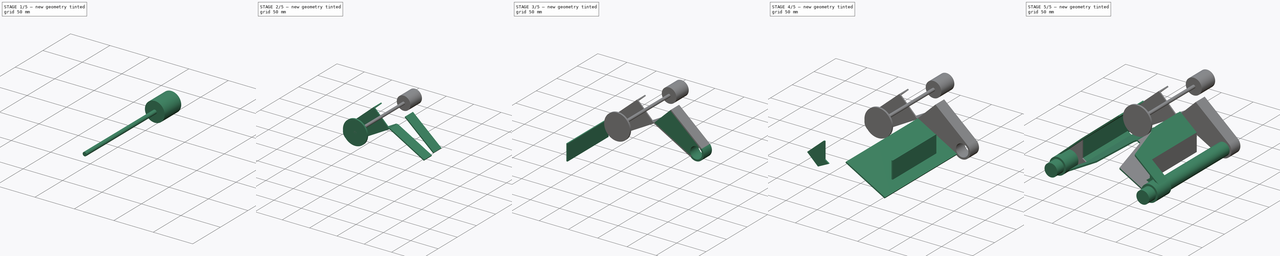
[diagram: build sequence overview — one tinted view per stage of 5, left to right]
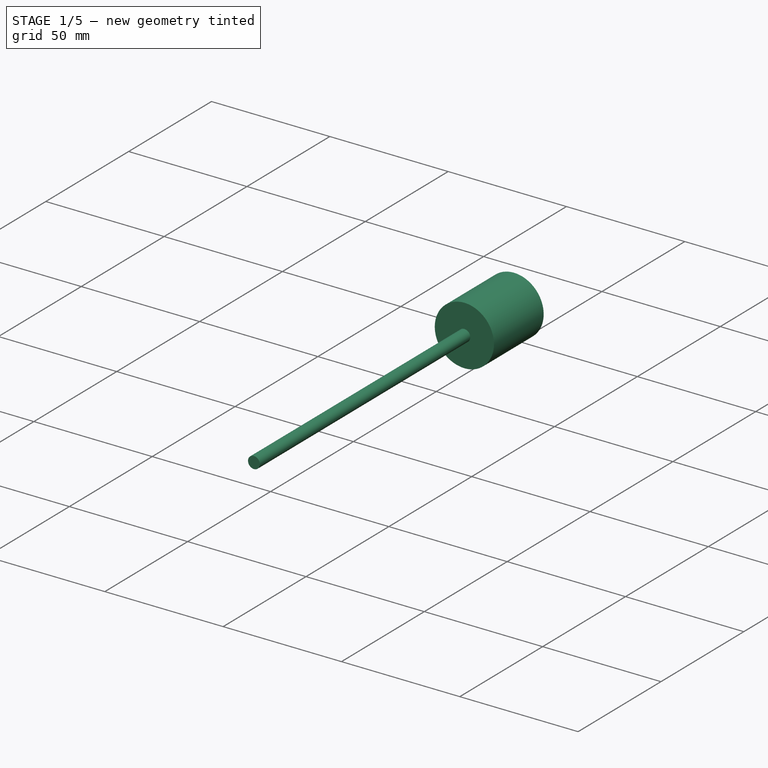
[diagram: stage 1 of 5 — iso view after this stage's code; geometry added in this stage tinted green]
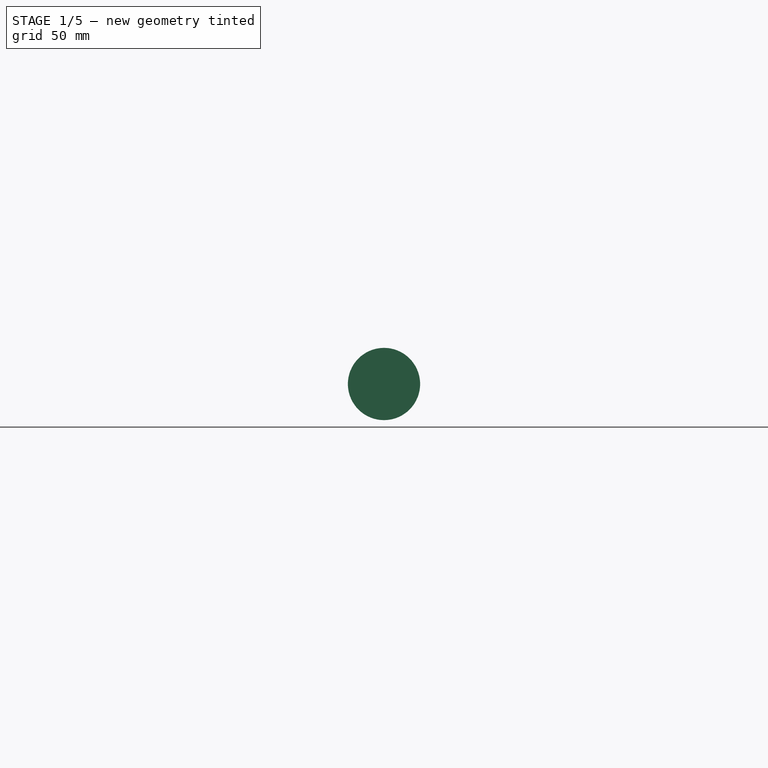
[diagram: stage 1 of 5 — front view after this stage's code; geometry added in this stage tinted green]
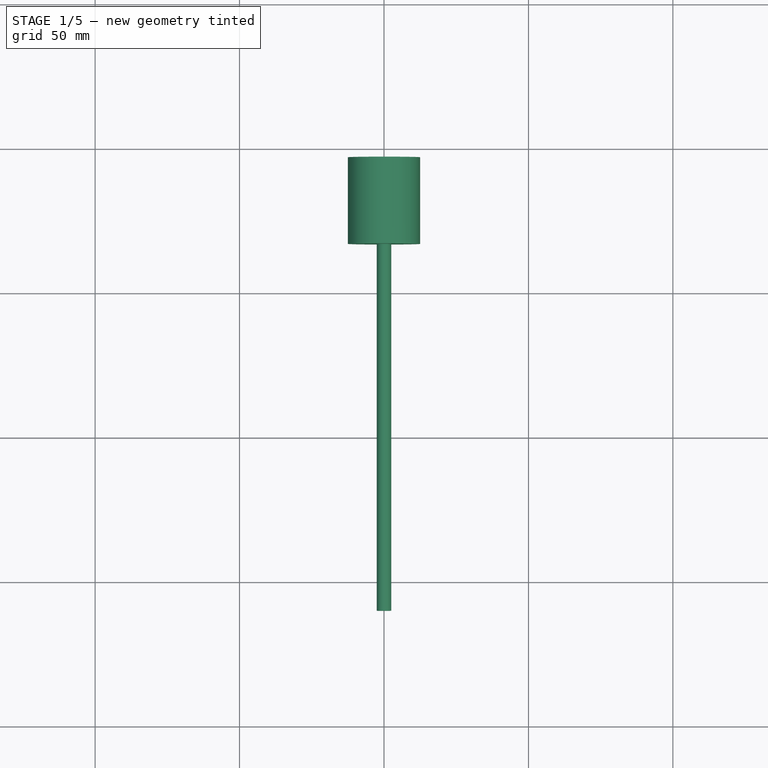
[diagram: stage 1 of 5 — top view after this stage's code; geometry added in this stage tinted green]
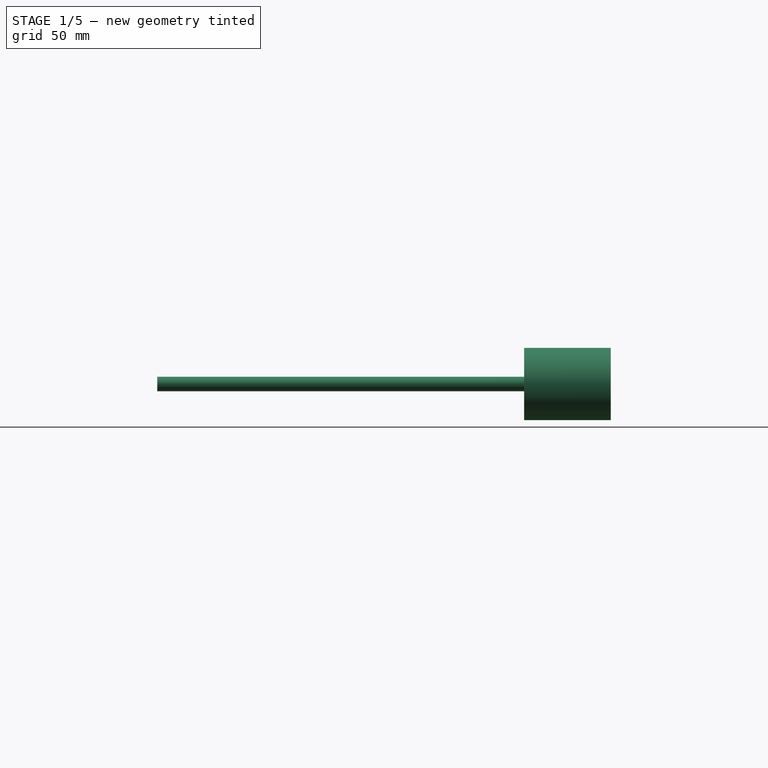
[diagram: stage 1 of 5 — right view after this stage's code; geometry added in this stage tinted green]
FCSTD DOCUMENT  (FreeCAD 0.20R29410 (Git))
Label: motorphite
License: All rights reserved
LicenseURL: http://en.wikipedia.org/wiki/All_rights_reserved
objects: Part::Extrusion×36, Part::RuledSurface×24, Sketcher::SketchObject×10, Part::Face×6, Part::MultiFuse×6, Part::MultiCommon×4, Part::Cut×3, Part::FeaturePython×1
note: 90 computed .brp shape members not serialized (recipe doc carries the construction recipe); baked Part::Feature solids carry a one-line shape summary decoded from their .brp

FEATURE [Part::RuledSurface] Ruled_Surface006
  Curve1 = -> Sketch002 [Edge3]
  Curve2 = -> Sketch002 [Edge7]
  Orientation = 0
FEATURE [Part::RuledSurface] Ruled_Surface007
  Curve1 = -> Sketch002 [Edge4]
  Curve2 = -> Sketch002 [Edge6]
  Orientation = 0
FEATURE [Part::RuledSurface] Ruled_Surface008
  Curve1 = -> Sketch002 [Edge2]
  Curve2 = -> Sketch002 [Edge8]
  Orientation = 0
FEATURE [Part::FeaturePython] Connect  # WARN: FeaturePython — macro-defined, semantics opaque (R4)
  Objects = -> [Ruled_Surface006,Ruled_Surface008,Ruled_Surface007]
  Tolerance = 0
FEATURE [Part::RuledSurface] Ruled_Surface009
  Curve1 = -> Sketch [Edge7]
  Curve2 = -> Sketch [Edge10]
  Orientation = 0
FEATURE [Part::Extrusion] Extrude009
  Base = -> Ruled_Surface009
  Dir = (0,-110,0)
  DirLink = -> Sketch001 [Edge1]
  DirMode = 1
  FaceMakerClass = Part::FaceMakerBullseye
  LengthFwd = 0
  LengthRev = 7
  Solid = true
  Symmetric = false
FEATURE [Part::Extrusion] Extrude010
  Base = -> Ruled_Surface009
  Dir = (0,-110,0)
  DirLink = -> Sketch001 [Edge1]
  DirMode = 1
  FaceMakerClass = Part::FaceMakerBullseye
  LengthFwd = 0
  LengthRev = 7
  Placement = pos=(0,-117,0) rot=(0,0,1;0rad)
  Solid = true
  Symmetric = false
FEATURE [Part::Extrusion] Extrude011
  Base = -> Connect
  Dir = (0,-110,0)
  DirLink = -> Sketch001 [Edge17]
  DirMode = 1
  FaceMakerClass = Part::FaceMakerBullseye
  LengthFwd = 0
  LengthRev = 0
  Solid = true
  Symmetric = false
FEATURE [Part::MultiFuse] Fusion005
  Shapes = -> [Extrude009,Extrude010,Extrude011]
FEATURE [Sketcher::SketchObject] Sketch007
  ExternalGeometry = -> [Sketch]
  FullyConstrained = false
  Placement = pos=(0,-110,0) rot=(1,0,0;1.5708rad)
  sketch-geometry (1):
    g0: Circle CenterX=0 CenterY=2.44e-14 CenterZ=0 NormalX=0 NormalY=0 NormalZ=1 AngleXU=0 Radius=22
  constraints (1):
    c: Coincident(g0,g-3)
FEATURE [Part::Face] Face003
  FaceMakerClass = Part::FaceMakerBullseye
  Sources = -> [Sketch007]
FEATURE [Part::Extrusion] Extrude032
  Base = -> Face003
  Dir = (0,1,0)
  DirMode = 0
  FaceMakerClass = Part::FaceMakerBullseye
  LengthFwd = 3
  LengthRev = 0
  Solid = true
  Symmetric = false
FEATURE [Part::Cut] Cut002
  Base = -> Fusion005
  Tool = -> Extrude032
FEATURE [Sketcher::SketchObject] Sketch008
  FullyConstrained = true
  Placement = pos=(0,-110,0) rot=(1,0,0;1.5708rad)
  sketch-geometry (1):
    g0: Circle CenterX=0 CenterY=0 CenterZ=0 NormalX=0 NormalY=0 NormalZ=1 AngleXU=0 Radius=2.5
  constraints (2):
    c: Coincident(g0,g-1)
    c: Diameter(g0) = 5
FEATURE [Part::Face] Face004
  FaceMakerClass = Part::FaceMakerBullseye
  Sources = -> [Sketch008]
FEATURE [Part::Extrusion] Extrude034
  Base = -> Face004
  Dir = (0,1,0)
  DirMode = 0
  FaceMakerClass = Part::FaceMakerBullseye
  LengthFwd = 157
  LengthRev = 0
  Solid = false
  Symmetric = false
FEATURE [Sketcher::SketchObject] Sketch009
  ExternalGeometry = -> [Sketch008,Cut002]
  FullyConstrained = true
  Placement = pos=(0,47,0) rot=(1,0,0;1.5708rad)
  sketch-geometry (1):
    g0: Circle CenterX=0 CenterY=0 CenterZ=0 NormalX=0 NormalY=0 NormalZ=1 AngleXU=0 Radius=12.5
  constraints (2):
    c: Coincident(g0,g-4)
    c: Diameter(g0) = 25
FEATURE [Part::Face] Face005
  FaceMakerClass = Part::FaceMakerBullseye
  Sources = -> [Sketch009]
FEATURE [Part::Extrusion] Extrude035
  Base = -> Sketch009
  Dir = (0,-1,0)
  DirMode = 0
  FaceMakerClass = Part::FaceMakerBullseye
  LengthFwd = 30
  LengthRev = 0
  Solid = true
  Symmetric = false
FEATURE [Part::Extrusion] Extrude036
  Base = -> Sketch009
  Dir = (0,-1,0)
  DirMode = 0
  FaceMakerClass = Part::FaceMakerBullseye
  LengthFwd = 30
  LengthRev = 0
  Solid = true
  Symmetric = false
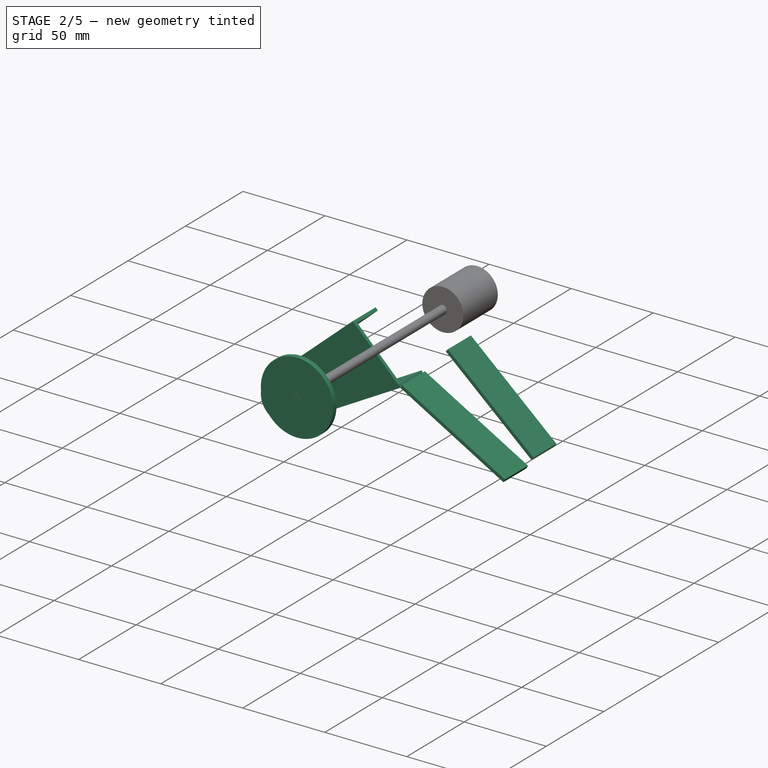
[diagram: stage 2 of 5 — iso view after this stage's code; geometry added in this stage tinted green]
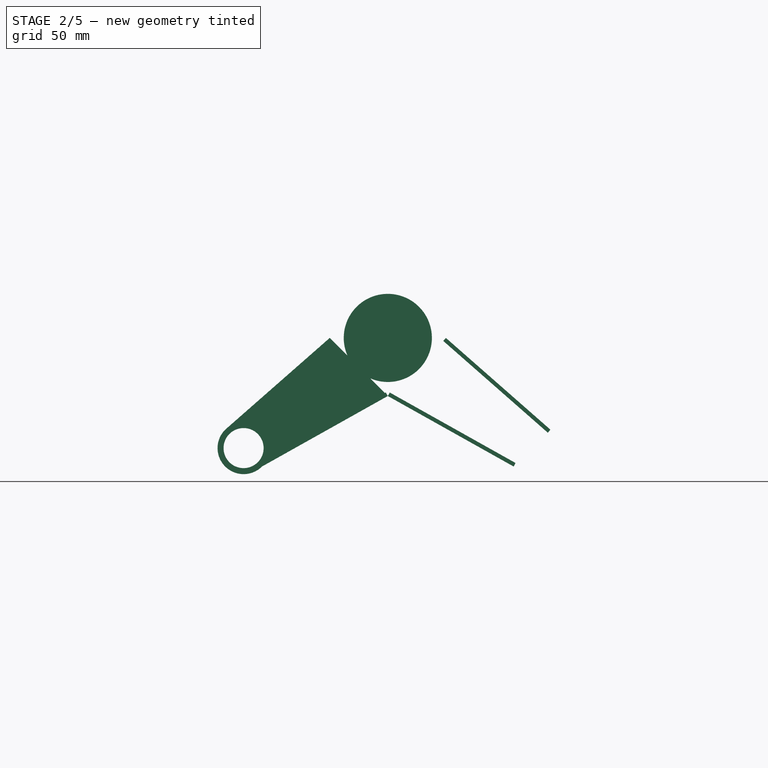
[diagram: stage 2 of 5 — front view after this stage's code; geometry added in this stage tinted green]
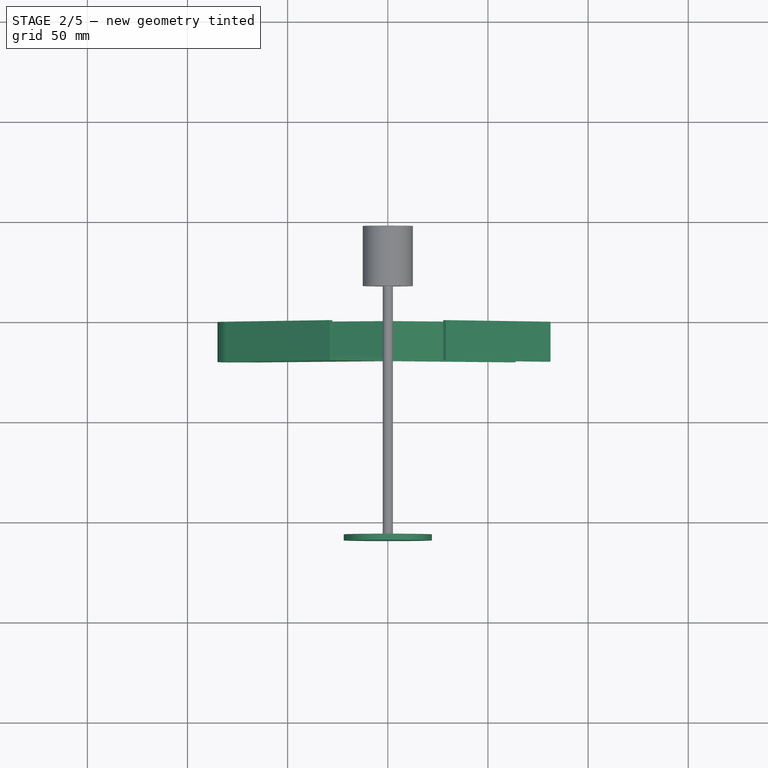
[diagram: stage 2 of 5 — top view after this stage's code; geometry added in this stage tinted green]
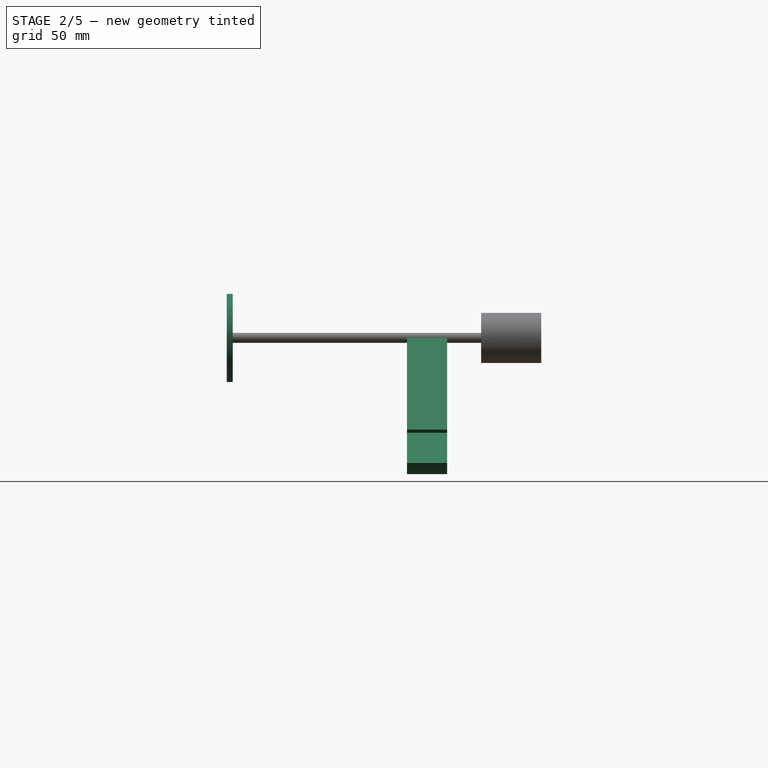
[diagram: stage 2 of 5 — right view after this stage's code; geometry added in this stage tinted green]
FEATURE [Sketcher::SketchObject] Sketch
  FullyConstrained = true
  Placement = pos=(0,0,0) rot=(1,0,0;1.5708rad)
  sketch-geometry (39):
    g0: LineSegment StartX=-55 StartY=55 StartZ=0 EndX=55 EndY=55 EndZ=0
    g1: LineSegment StartX=-55 StartY=55 StartZ=0 EndX=-55 EndY=-55 EndZ=0
    g2: LineSegment StartX=55 StartY=55 StartZ=0 EndX=55 EndY=-55 EndZ=0
    g3: LineSegment StartX=-55 StartY=-55 StartZ=0 EndX=55 EndY=-55 EndZ=0
    g4: GeomPoint X=72 Y=-55 Z=0
    g5: GeomPoint X=-72 Y=-55 Z=0
    g6: Circle CenterX=72 CenterY=-55 CenterZ=0 NormalX=0 NormalY=0 NormalZ=1 AngleXU=0 Radius=10
    g7: Circle CenterX=-72 CenterY=-55 CenterZ=0 NormalX=0 NormalY=0 NormalZ=1 AngleXU=0 Radius=10
    g8: Circle CenterX=0 CenterY=0 CenterZ=0 NormalX=0 NormalY=0 NormalZ=1 AngleXU=0 Radius=22
    g9: Circle CenterX=0 CenterY=0 CenterZ=0 NormalX=0 NormalY=0 NormalZ=1 AngleXU=0 Radius=29
    g10: Circle CenterX=72 CenterY=-55 CenterZ=0 NormalX=0 NormalY=0 NormalZ=1 AngleXU=0 Radius=13
    g11: Circle CenterX=-72 CenterY=-55 CenterZ=0 NormalX=0 NormalY=0 NormalZ=1 AngleXU=0 Radius=13
    g12: LineSegment StartX=-72 StartY=-55 StartZ=0 EndX=-81.1924 EndY=-45.8076 EndZ=0
    g13: LineSegment StartX=-72 StartY=-55 StartZ=0 EndX=-62.8076 EndY=-64.1924 EndZ=0
    g14: LineSegment StartX=72 StartY=-55 StartZ=0 EndX=81.1924 EndY=-45.8076 EndZ=0
    g15: LineSegment StartX=72 StartY=-55 StartZ=0 EndX=62.8076 EndY=-64.1924 EndZ=0
    g16: GeomPoint X=0 Y=-29 Z=0
    g17: GeomPoint X=29 Y=0 Z=0
    g18: GeomPoint X=-29 Y=0 Z=0
    g19: LineSegment StartX=-81.1924 StartY=-45.8076 StartZ=0 EndX=-29 EndY=0 EndZ=0
    g20: LineSegment StartX=29 StartY=0 StartZ=0 EndX=81.1924 EndY=-45.8076 EndZ=0
    g21: LineSegment StartX=-62.8076 StartY=-64.1924 StartZ=0 EndX=0 EndY=-29 EndZ=0
    g22: LineSegment StartX=62.8076 StartY=-64.1924 StartZ=0 EndX=0 EndY=-29 EndZ=0
    g23: LineSegment StartX=-55 StartY=-37.5 StartZ=0 EndX=-55 EndY=37.5 EndZ=0
    g24: LineSegment StartX=-55 StartY=37.5 StartZ=0 EndX=-37.5 EndY=55 EndZ=0
    g25: LineSegment StartX=-37.5 StartY=55 StartZ=0 EndX=37.5 EndY=55 EndZ=0
    g26: LineSegment StartX=37.5 StartY=55 StartZ=0 EndX=55 EndY=37.5 EndZ=0
    g27: LineSegment StartX=55 StartY=37.5 StartZ=0 EndX=55 EndY=-37.5 EndZ=0
    g28: LineSegment StartX=37.5 StartY=-55 StartZ=0 EndX=55 EndY=-37.5 EndZ=0
    g29: LineSegment StartX=37.5 StartY=-55 StartZ=0 EndX=-37.5 EndY=-55 EndZ=0
    g30: LineSegment StartX=-55 StartY=-37.5 StartZ=0 EndX=-37.5 EndY=-55 EndZ=0
    g31: LineSegment StartX=-27.6807 StartY=-1.50316 StartZ=0 EndX=-79.8731 EndY=-47.3108 EndZ=0
    g32: LineSegment StartX=79.8731 StartY=-47.3108 StartZ=0 EndX=27.6807 EndY=-1.50316 EndZ=0
    g33: LineSegment StartX=27.6807 StartY=-1.50316 StartZ=0 EndX=29 EndY=0 EndZ=0
    g34: LineSegment StartX=-29 StartY=0 StartZ=0 EndX=-27.6807 EndY=-1.50316 EndZ=0
    g35: LineSegment StartX=-63.7852 StartY=-62.4476 StartZ=0 EndX=-0.977632 EndY=-27.2552 EndZ=0
    g36: LineSegment StartX=0.977632 StartY=-27.2552 StartZ=0 EndX=63.7852 EndY=-62.4476 EndZ=0
    g37: LineSegment StartX=-0.977632 StartY=-27.2552 StartZ=0 EndX=0 EndY=-29 EndZ=0
    g38: LineSegment StartX=0 StartY=-29 StartZ=0 EndX=0.977632 EndY=-27.2552 EndZ=0
  constraints (102):
    c: Horizontal(g0)
    c: DistanceY(g-1,g0) = 55
    c: DistanceX(g0,g-1) = 55
    c: DistanceX(g0,g0) = 110
    c: Coincident(g1,g0)
    c: Vertical(g1)
    c: DistanceY(g1,g0) = 110
    c: Coincident(g2,g0)
    c: Vertical(g2)
    c: Coincident(g3,g1)
    c: Coincident(g3,g2)
    c: Horizontal(g3)
    c: DistanceY(g4,g0) = 110
    c: DistanceX(g-1,g4) = 72
    c: Coincident(g6,g4)
    c: Diameter(g6) = 20
    c: Horizontal(g5,g6)
    c: DistanceX(g5,g6) = 144
    c: Coincident(g7,g5)
    c: Diameter(g7) = 20
    c: Coincident(g8,g-1)
    c: Diameter(g8) = 44
    c: Coincident(g9,g8)
    c: Diameter(g9) = 58
    c: Coincident(g10,g6)
    c: Diameter(g10) = 26
    c: Coincident(g11,g7)
    c: Diameter(g11) = 26
    c: Coincident(g12,g7)
    c: PointOnObject(g12,g11)
    c: Angle(g3,g12) = 2.35619
    c: Coincident(g13,g7)
    c: PointOnObject(g13,g11)
    c: Angle(g12,g13) = 3.14159
    c: Coincident(g14,g6)
    c: PointOnObject(g14,g10)
    c: Coincident(g15,g6)
    c: PointOnObject(g15,g10)
    c: Angle(g14,g3) = 2.35619
    c: Angle(g15,g14) = 3.14159
    c: PointOnObject(g16,g9)
    c: Vertical(g16,g8)
    c: PointOnObject(g17,g9)
    c: PointOnObject(g18,g9)
    c: Horizontal(g17,g8)
    c: Horizontal(g18,g8)
    c: Coincident(g22,g15)
    c: Coincident(g22,g16)
    c: Coincident(g21,g22)
    c: Coincident(g21,g13)
    c: Coincident(g19,g12)
    c: Coincident(g19,g18)
    c: Coincident(g20,g17)
    c: Coincident(g20,g14)
    c: Horizontal(g25)
    c: DistanceX(g25,g8) = 37.5
    c: DistanceX(g25,g25) = 75
    c: Horizontal(g25,g0)
    c: DistanceY(g8,g27) = 37.5
    c: Vertical(g27,g27)
    c: DistanceY(g27,g27) = 75
    c: Vertical(g27,g0)
    c: Horizontal(g27,g23)
    c: Horizontal(g27,g23)
    c: Vertical(g23,g23)
    c: Vertical(g23,g1)
    c: Coincident(g24,g25)
    c: Coincident(g24,g23)
    c: Coincident(g26,g25)
    c: Coincident(g26,g27)
    c: Vertical(g29,g24)
    c: Vertical(g29,g25)
    c: Horizontal(g29,g29)
    c: Horizontal(g29,g1)
    c: Coincident(g30,g23)
    c: Coincident(g29,g30)
    c: Coincident(g28,g29)
    c: Coincident(g28,g27)
    c: Coincident(g20,g33)
    c: Angle(g33,g20) = 1.5708
    c: Distance(g20,g33) = 2
    c: Angle(g20,g32) = 0
    c: Coincident(g33,g32)
    c: Distance(g14,g32) = 2
    c: Coincident(g19,g34)
    c: Angle(g19,g34) = 1.5708
    c: Distance(g19,g34) = 2
    c: Angle(g19,g31) = 0
    c: Coincident(g34,g31)
    c: Distance(g12,g31) = 2
    c: Coincident(g37,g21)
    c: Coincident(g21,g38)
    c: Angle(g37,g21) = 1.5708
    c: Angle(g22,g38) = 1.5708
    c: Angle(g21,g35) = 0
    c: Angle(g36,g22) = 0
    c: Distance(g21,g37) = 2
    c: Horizontal(g38,g37)
    c: Coincident(g36,g38)
    c: Coincident(g35,g37)
    c: Distance(g15,g36) = 2
    c: Distance(g13,g35) = 2
FEATURE [Sketcher::SketchObject] Sketch001
  ExternalGeometry = -> [Sketch]
  FullyConstrained = false
  MapMode = 4
  sketch-geometry (17):
    g0: LineSegment StartX=55 StartY=-1.8e-15 StartZ=0 EndX=55 EndY=-110 EndZ=0
    g1: LineSegment StartX=55 StartY=0 StartZ=0 EndX=55 EndY=-110 EndZ=0
    g2: LineSegment StartX=55 StartY=-110 StartZ=0 EndX=55 EndY=-110 EndZ=0
    g3: LineSegment StartX=-29 StartY=0 StartZ=0 EndX=29 EndY=0 EndZ=0
    g4: LineSegment StartX=-29 StartY=7 StartZ=0 EndX=-29 EndY=0 EndZ=0
    g5: LineSegment StartX=29 StartY=7 StartZ=0 EndX=29 EndY=0 EndZ=0
    g6: LineSegment StartX=29 StartY=7 StartZ=0 EndX=-29 EndY=7 EndZ=0
    g7: LineSegment StartX=-29 StartY=-117 StartZ=0 EndX=29 EndY=-117 EndZ=0
    g8: LineSegment StartX=29 StartY=-110 StartZ=0 EndX=29 EndY=-117 EndZ=0
    g9: LineSegment StartX=-29 StartY=-110 StartZ=0 EndX=-29 EndY=-117 EndZ=0
    g10: LineSegment StartX=-29.1576 StartY=-110 StartZ=0 EndX=29 EndY=-110 EndZ=0
    g11: LineSegment StartX=-29 StartY=0 StartZ=0 EndX=29 EndY=0 EndZ=0
    g12: LineSegment StartX=-72 StartY=-155 StartZ=0 EndX=-72 EndY=-185 EndZ=0
    g13: LineSegment StartX=72 StartY=-155 StartZ=0 EndX=72 EndY=-185 EndZ=0
    g14: LineSegment StartX=72 StartY=0 StartZ=0 EndX=72 EndY=-20 EndZ=0
    g15: LineSegment StartX=-72 StartY=0 StartZ=0 EndX=-72 EndY=-20 EndZ=0
    g16: LineSegment StartX=0 StartY=-6.4e-15 StartZ=0 EndX=0 EndY=-110 EndZ=0
  constraints (57):
    c: Coincident(g0,g-5)
    c: DistanceY(g0,g0) = 110
    c: Vertical(g0,g0)
    c: Coincident(g1,g-5)
    c: Horizontal(g0,g1)
    c: Vertical(g1,g1)
    c: Coincident(g2,g0)
    c: Coincident(g2,g1)
    c: Horizontal(g3)
    c: DistanceX(g3,g3) = 58
    c: DistanceX(g3,g-1) = 29
    c: Horizontal(g-1,g3)
    c: Vertical(g4)
    c: Vertical(g5)
    c: DistanceY(g4,g4) = 7
    c: Coincident(g3,g4)
    c: Coincident(g3,g5)
    c: Horizontal(g4,g5)
    c: Coincident(g6,g4)
    c: Coincident(g5,g6)
    c: Horizontal(g7)
    c: Vertical(g3,g9)
    c: Vertical(g3,g9)
    c: Vertical(g5,g8)
    c: Vertical(g3,g8)
    c: Horizontal(g9,g1)
    c: Horizontal(g0,g8)
    c: Vertical(g3,g7)
    c: Vertical(g5,g7)
    c: DistanceY(g9,g9) = 7
    c: Horizontal(g9,g7)
    c: Horizontal(g7,g8)
    c: Horizontal(g10)
    c: Vertical(g8,g10)
    c: Horizontal(g10,g9)
    c: Horizontal(g11)
    c: Vertical(g3,g11)
    c: Vertical(g3,g11)
    c: Horizontal(g3,g11)
    c: Vertical(g12)
    c: Vertical(g13)
    c: DistanceY(g12,g12) = 30
    c: Horizontal(g12,g13)
    c: Horizontal(g12,g13)
    c: Vertical(g14)
    c: Vertical(g15)
    c: DistanceY(g14,g14) = 20
    c: Horizontal(g14,g15)
    c: PointOnObject(g16,g-2)
    c: PointOnObject(g16,g-2)
    c: Horizontal(g-4,g16)
    c: Horizontal(g16,g8)
    c: DistanceX(g16,g14) = 72
    c: DistanceX(g15,g14) = 144
    c: Vertical(g15,g12)
    c: Vertical(g14,g13)
    c: DistanceY(g12,g15) = 135
FEATURE [Sketcher::SketchObject] Sketch002
  ExternalGeometry = -> [Sketch]
  FullyConstrained = true
  Placement = pos=(0,0,0) rot=(1,0,0;1.5708rad)
  sketch-geometry (9):
    g0: LineSegment StartX=-62.8076 StartY=-64.1924 StartZ=0 EndX=0.977632 EndY=-27.2552 EndZ=0
    g1: LineSegment StartX=-55 StartY=37.5 StartZ=0 EndX=-55 EndY=-37.5 EndZ=0
    g2: LineSegment StartX=-55 StartY=37.5 StartZ=0 EndX=-37.5 EndY=55 EndZ=0
    g3: LineSegment StartX=-37.5 StartY=55 StartZ=0 EndX=37.5 EndY=55 EndZ=0
    g4: LineSegment StartX=37.5 StartY=55 StartZ=0 EndX=55 EndY=37.5 EndZ=0
    g5: LineSegment StartX=55 StartY=37.5 StartZ=0 EndX=55 EndY=-37.5 EndZ=0
    g6: LineSegment StartX=37.5 StartY=-55 StartZ=0 EndX=-37.5 EndY=-55 EndZ=0
    g7: LineSegment StartX=37.5 StartY=-55 StartZ=0 EndX=55 EndY=-37.5 EndZ=0
    g8: LineSegment StartX=-55 StartY=-37.5 StartZ=0 EndX=-37.5 EndY=-55 EndZ=0
  constraints (36):
    c: Horizontal(g-5,g0)
    c: Vertical(g-5,g0)
    c: Vertical(g-4,g0)
    c: Horizontal(g-4,g0)
    c: Vertical(g1)
    c: Horizontal(g3)
    c: Horizontal(g6)
    c: Vertical(g5,g5)
    c: Horizontal(g-16,g5)
    c: Horizontal(g-17,g5)
    c: Horizontal(g-17,g1)
    c: Horizontal(g-13,g1)
    c: Horizontal(g2,g-13)
    c: Horizontal(g-13,g4)
    c: Horizontal(g-17,g7)
    c: Horizontal(g-18,g8)
    c: Horizontal(g-19,g7)
    c: Horizontal(g-20,g8)
    c: Vertical(g-14,g3)
    c: Vertical(g-15,g3)
    c: Vertical(g4,g-15)
    c: Vertical(g4,g-16)
    c: Vertical(g5,g4)
    c: Vertical(g2,g-13)
    c: Vertical(g1,g2)
    c: Vertical(g2,g-14)
    c: Vertical(g-20,g6)
    c: Vertical(g-19,g6)
    c: Vertical(g-19,g7)
    c: Vertical(g8,g-20)
    c: Vertical(g8,g1)
    c: Vertical(g5,g7)
    c: Horizontal(g3,g-15)
    c: Horizontal(g2,g3)
    c: Horizontal(g4,g3)
    c: Horizontal(g7,g6)
FEATURE [Part::RuledSurface] Ruled_Surface
  Curve1 = -> Sketch [Edge11]
  Curve2 = -> Sketch [Edge8]
  Orientation = 0
FEATURE [Part::RuledSurface] Ruled_Surface001
  Curve1 = -> Sketch [Edge24]
  Curve2 = -> Sketch [Edge14]
  Orientation = 0
FEATURE [Part::RuledSurface] Ruled_Surface002
  Curve1 = -> Sketch [Edge16]
  Curve2 = -> Sketch [Edge22]
  Orientation = 0
FEATURE [Part::RuledSurface] Ruled_Surface003
  Curve1 = -> Sketch [Edge19]
  Curve2 = -> Sketch [Edge17]
  Orientation = 0
FEATURE [Part::Extrusion] Extrude
  Base = -> Ruled_Surface
  Dir = (0,-110,0)
  DirLink = -> Sketch001 [Edge1]
  DirMode = 1
  FaceMakerClass = Part::FaceMakerBullseye
  LengthFwd = 20
  LengthRev = 0
  Solid = true
  Symmetric = false
FEATURE [Part::Extrusion] Extrude001
  Base = -> Ruled_Surface001
  Dir = (0,-110,0)
  DirLink = -> Sketch001 [Edge1]
  DirMode = 1
  FaceMakerClass = Part::FaceMakerBullseye
  LengthFwd = 20
  LengthRev = 0
  Solid = true
  Symmetric = false
FEATURE [Part::Extrusion] Extrude002
  Base = -> Ruled_Surface002
  Dir = (0,-110,0)
  DirLink = -> Sketch001 [Edge1]
  DirMode = 1
  FaceMakerClass = Part::FaceMakerBullseye
  LengthFwd = 20
  LengthRev = 0
  Solid = true
  Symmetric = false
FEATURE [Part::Extrusion] Extrude003
  Base = -> Ruled_Surface003
  Dir = (0,-110,0)
  DirLink = -> Sketch001 [Edge1]
  DirMode = 1
  FaceMakerClass = Part::FaceMakerBullseye
  LengthFwd = 20
  LengthRev = 0
  Solid = true
  Symmetric = false
FEATURE [Part::RuledSurface] Ruled_Surface005
  Curve1 = -> Sketch [Edge26]
  Curve2 = -> Sketch [Edge6]
  Orientation = 0
FEATURE [Part::Extrusion] Extrude005
  Base = -> Ruled_Surface005
  Dir = (0,-110,0)
  DirLink = -> Sketch001 [Edge1]
  DirMode = 1
  FaceMakerClass = Part::FaceMakerBullseye
  LengthFwd = 20
  LengthRev = 0
  Solid = true
  Symmetric = false
FEATURE [Part::Extrusion] Extrude013
  Base = -> Face
  Dir = (0,-1,0)
  DirLink = -> Sketch001 [Edge15]
  DirMode = 0
  FaceMakerClass = Part::FaceMakerBullseye
  LengthFwd = 30
  LengthRev = 0
  Solid = false
  Symmetric = false
FEATURE [Part::RuledSurface] Ruled_Surface011
  Curve1 = -> Extrude003 [Edge4]
  Curve2 = -> Extrude002 [Edge10]
  Orientation = 0
FEATURE [Part::Extrusion] Extrude014
  Base = -> Ruled_Surface011
  Dir = (0,1,0)
  DirMode = 0
  FaceMakerClass = Part::FaceMakerBullseye
  LengthFwd = 2
  LengthRev = 0
  Solid = true
  Symmetric = false
FEATURE [Part::MultiFuse] Fusion
  Shapes = -> [Extrude014,Extrude005,Extrude002,Extrude003]
FEATURE [Part::Cut] Cut001
  Base = -> Fusion
  Tool = -> Extrude013
FEATURE [Part::Extrusion] Extrude033
  Base = -> Face003
  Dir = (0,1,0)
  DirMode = 0
  FaceMakerClass = Part::FaceMakerBullseye
  LengthFwd = 3
  LengthRev = 0
  Solid = true
  Symmetric = false
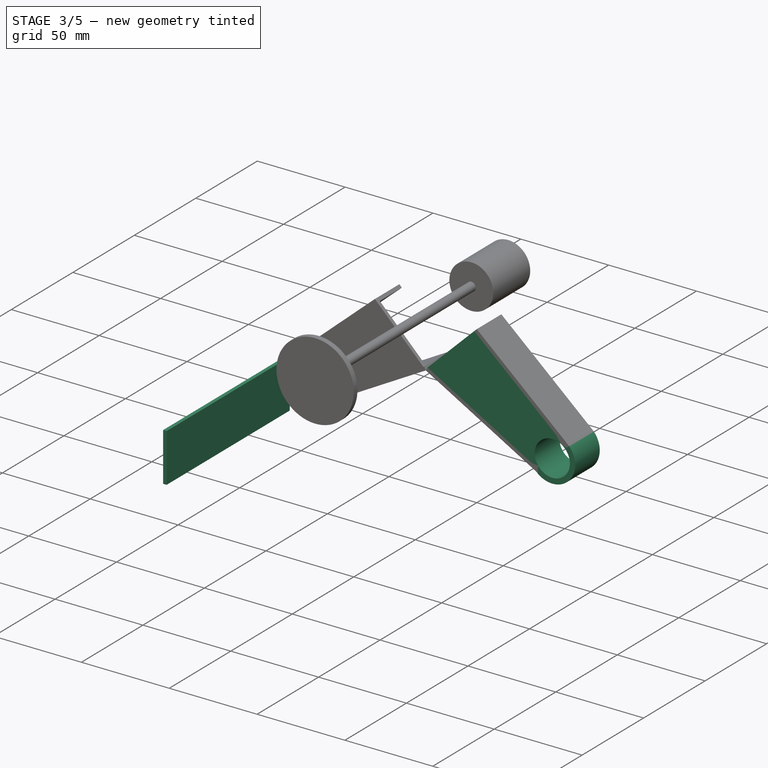
[diagram: stage 3 of 5 — iso view after this stage's code; geometry added in this stage tinted green]
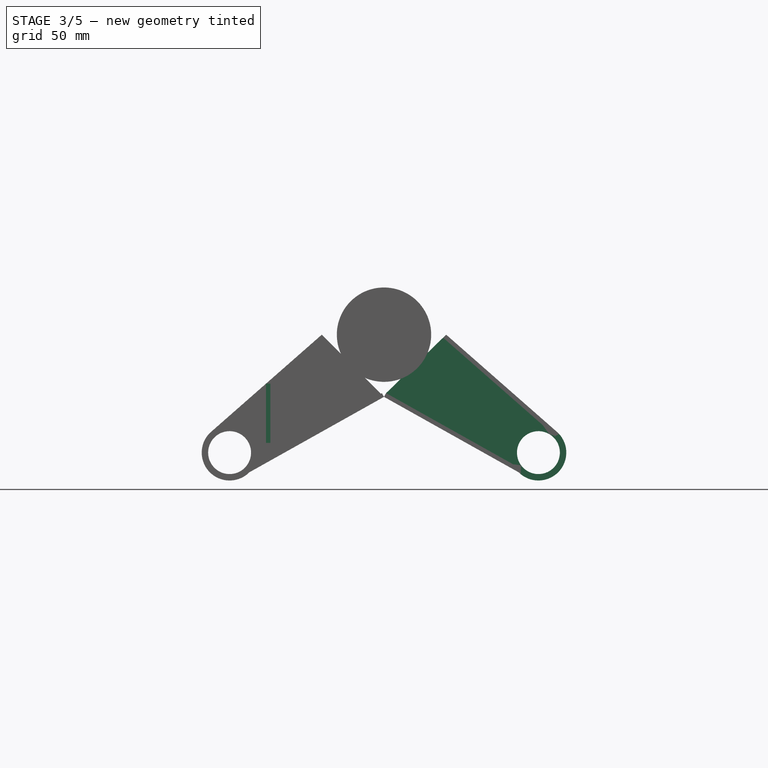
[diagram: stage 3 of 5 — front view after this stage's code; geometry added in this stage tinted green]
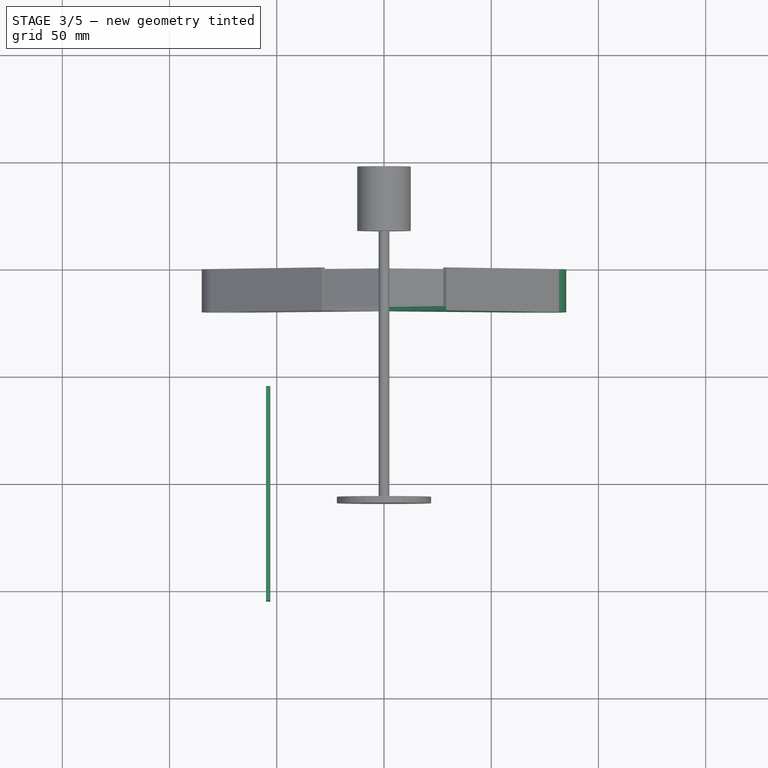
[diagram: stage 3 of 5 — top view after this stage's code; geometry added in this stage tinted green]
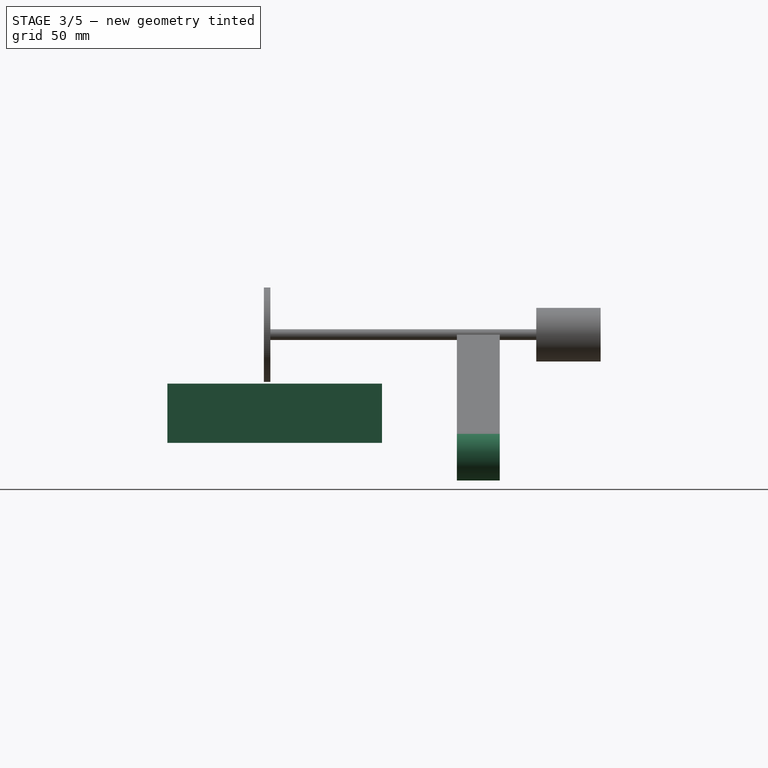
[diagram: stage 3 of 5 — right view after this stage's code; geometry added in this stage tinted green]
FEATURE [Part::RuledSurface] Ruled_Surface004
  Curve1 = -> Sketch [Edge5]
  Curve2 = -> Sketch [Edge25]
  Orientation = 0
FEATURE [Part::Extrusion] Extrude004
  Base = -> Ruled_Surface004
  Dir = (0,-110,0)
  DirLink = -> Sketch001 [Edge1]
  DirMode = 1
  FaceMakerClass = Part::FaceMakerBullseye
  LengthFwd = 20
  LengthRev = 0
  Solid = true
  Symmetric = false
FEATURE [Part::RuledSurface] Ruled_Surface010
  Curve1 = -> Extrude [Edge4]
  Curve2 = -> Extrude001 [Edge4]
  Orientation = 0
FEATURE [Part::Extrusion] Extrude012
  Base = -> Ruled_Surface010
  Dir = (0,1,0)
  DirMode = 0
  FaceMakerClass = Part::FaceMakerBullseye
  LengthFwd = 2
  LengthRev = 0
  Solid = true
  Symmetric = false
FEATURE [Sketcher::SketchObject] Sketch003
  ExternalGeometry = -> [Sketch]
  FullyConstrained = false
  Placement = pos=(0,0,0) rot=(1,0,0;1.5708rad)
  sketch-geometry (4):
    g0: GeomPoint X=-72 Y=-55 Z=0
    g1: Circle CenterX=-72 CenterY=-55 CenterZ=0 NormalX=0 NormalY=0 NormalZ=1 AngleXU=0 Radius=10
    g2: GeomPoint X=72 Y=-55 Z=0
    g3: Circle CenterX=72 CenterY=-55 CenterZ=0 NormalX=0 NormalY=0 NormalZ=1 AngleXU=0 Radius=10
  constraints (4):
    c: Coincident(g0,g-3)
    c: Coincident(g1,g0)
    c: Coincident(g2,g-4)
    c: Coincident(g3,g2)
FEATURE [Part::Face] Face
  FaceMakerClass = Part::FaceMakerBullseye
  Sources = -> [Sketch003]
FEATURE [Part::MultiFuse] Fusion001
  Shapes = -> [Extrude012,Extrude,Extrude001,Extrude004]
FEATURE [Part::Cut] Cut
  Base = -> Fusion001
  Tool = -> Extrude013
FEATURE [Part::Extrusion] Extrude018
  Base = -> Ruled_Surface003
  Dir = (0,-1,0)
  DirMode = 0
  FaceMakerClass = Part::FaceMakerBullseye
  LengthFwd = 185
  LengthRev = 0
  Solid = true
  Symmetric = false
FEATURE [Sketcher::SketchObject] Sketch004
  ExternalGeometry = -> [Sketch001]
  FullyConstrained = false
  sketch-geometry (14):
    g0: GeomPoint X=55 Y=-55 Z=0
    g1: LineSegment StartX=55 StartY=-54.9128 StartZ=0 EndX=55 EndY=-155 EndZ=0
    g2: GeomPoint X=-55 Y=-54.9128 Z=0
    g3: LineSegment StartX=-55 StartY=-54.9128 StartZ=0 EndX=-55 EndY=-155 EndZ=0
    g4: LineSegment StartX=55 StartY=-155 StartZ=0 EndX=85 EndY=-155 EndZ=0
    g5: LineSegment StartX=-85 StartY=-155 StartZ=0 EndX=-55 EndY=-155 EndZ=0
    g6: LineSegment StartX=-85 StartY=-175 StartZ=0 EndX=-42 EndY=-175 EndZ=0
    g7: LineSegment StartX=85 StartY=-175 StartZ=0 EndX=42 EndY=-175 EndZ=0
    g8: LineSegment StartX=-29.1576 StartY=-110 StartZ=0 EndX=-42 EndY=-175 EndZ=0
    g9: LineSegment StartX=29 StartY=-110 StartZ=0 EndX=42 EndY=-175 EndZ=0
    g10: LineSegment StartX=-85 StartY=-155 StartZ=0 EndX=-85 EndY=-175 EndZ=0
    g11: LineSegment StartX=85 StartY=-155 StartZ=0 EndX=85 EndY=-175 EndZ=0
    g12: LineSegment StartX=-55 StartY=-54.9128 StartZ=0 EndX=55 EndY=-54.9128 EndZ=0
    g13: LineSegment StartX=-29.1576 StartY=-110 StartZ=0 EndX=29 EndY=-110 EndZ=0
  constraints (37):
    c: DistanceY(g0,g-1) = 55
    c: DistanceX(g-1,g0) = 55
    c: Vertical(g1)
    c: Vertical(g0,g1)
    c: Horizontal(g-3,g1)
    c: Horizontal(g1,g2)
    c: DistanceX(g2,g1) = 110
    c: Vertical(g3)
    c: Coincident(g2,g3)
    c: Horizontal(g1,g3)
    c: Horizontal(g4)
    c: Coincident(g4,g1)
    c: Coincident(g3,g5)
    c: Horizontal(g3,g5)
    c: DistanceX(g5,g3) = 30
    c: DistanceX(g1,g4) = 30
    c: Horizontal(g6)
    c: Horizontal(g7)
    c: DistanceY(g6,g5) = 20
    c: Horizontal(g6,g7)
    c: Vertical(g5,g6)
    c: Vertical(g4,g7)
    c: DistanceX(g-4,g6) = 30
    c: Coincident(g6,g8)
    c: Coincident(g8,g-5)
    c: DistanceX(g7,g-3) = 30
    c: Coincident(g-5,g9)
    c: Coincident(g9,g7)
    c: Vertical(g10)
    c: Coincident(g10,g5)
    c: Horizontal(g6,g10)
    c: Coincident(g11,g4)
    c: Coincident(g11,g7)
    c: Coincident(g12,g3)
    c: Coincident(g12,g1)
    c: Coincident(g13,g8)
    c: Coincident(g13,g9)
FEATURE [Part::Face] Face001
  FaceMakerClass = Part::FaceMakerBullseye
  Sources = -> [Sketch004]
FEATURE [Part::Extrusion] Extrude019
  Base = -> Face001
  Dir = (0,0,-1)
  DirMode = 0
  FaceMakerClass = Part::FaceMakerBullseye
  LengthFwd = 70
  LengthRev = 0
  Solid = true
  Symmetric = false
FEATURE [Sketcher::SketchObject] Sketch005
  ExternalGeometry = -> [Sketch004,Sketch001]
  FullyConstrained = false
  sketch-geometry (12):
    g0: LineSegment StartX=5 StartY=-110 StartZ=0 EndX=18 EndY=-175 EndZ=0
    g1: LineSegment StartX=-5 StartY=-110 StartZ=0 EndX=-17.8424 EndY=-175 EndZ=0
    g2: LineSegment StartX=-85 StartY=-155 StartZ=0 EndX=-85 EndY=-175 EndZ=0
    g3: LineSegment StartX=-17.8424 StartY=-175 StartZ=0 EndX=-85 EndY=-175 EndZ=0
    g4: LineSegment StartX=85 StartY=-155 StartZ=0 EndX=85 EndY=-175 EndZ=0
    g5: LineSegment StartX=85 StartY=-175 StartZ=0 EndX=18 EndY=-175 EndZ=0
    g6: LineSegment StartX=5 StartY=-110 StartZ=0 EndX=-5 EndY=-110 EndZ=0
    g7: LineSegment StartX=-47.5 StartY=-54.9128 StartZ=0 EndX=47.5 EndY=-54.9128 EndZ=0
    g8: LineSegment StartX=-47.5 StartY=-54.9128 StartZ=0 EndX=-47.5 EndY=-155 EndZ=0
    g9: LineSegment StartX=47.5 StartY=-54.9128 StartZ=0 EndX=47.5 EndY=-155 EndZ=0
    g10: LineSegment StartX=-85 StartY=-155 StartZ=0 EndX=-47.5 EndY=-155 EndZ=0
    g11: LineSegment StartX=47.5 StartY=-155 StartZ=0 EndX=85 EndY=-155 EndZ=0
  constraints (31):
    c: DistanceX(g-1,g0) = 5
    c: DistanceX(g1,g-1) = 5
    c: Horizontal(g-11,g1)
    c: Horizontal(g-11,g0)
    c: Angle(g1,g-12) = 0
    c: Angle(g-13,g0) = 0
    c: Horizontal(g-12,g1)
    c: Horizontal(g-13,g0)
    c: Coincident(g2,g-6)
    c: Coincident(g2,g-6)
    c: Coincident(g3,g1)
    c: Coincident(g3,g2)
    c: Coincident(g4,g-7)
    c: Coincident(g5,g4)
    c: Coincident(g5,g0)
    c: Coincident(g6,g0)
    c: Coincident(g6,g1)
    c: Horizontal(g7)
    c: Horizontal(g-3,g7)
    c: DistanceX(g-3,g7) = 7.5
    c: DistanceX(g7,g-4) = 7.5
    c: Coincident(g8,g7)
    c: Vertical(g8)
    c: Coincident(g9,g7)
    c: Vertical(g9)
    c: Horizontal(g2,g8)
    c: Horizontal(g4,g9)
    c: Coincident(g10,g2)
    c: Coincident(g10,g8)
    c: Coincident(g11,g9)
    c: Coincident(g11,g4)
FEATURE [Part::MultiCommon] Common
  Shapes = -> [Extrude019,Extrude018]
FEATURE [Part::Extrusion] Extrude024
  Base = -> Ruled_Surface015
  Dir = (1,0,0)
  DirMode = 0
  FaceMakerClass = Part::FaceMakerBullseye
  LengthFwd = 2
  LengthRev = 0
  Solid = true
  Symmetric = false
FEATURE [Part::MultiFuse] Fusion004
  Shapes = -> [Cut,Cut001]
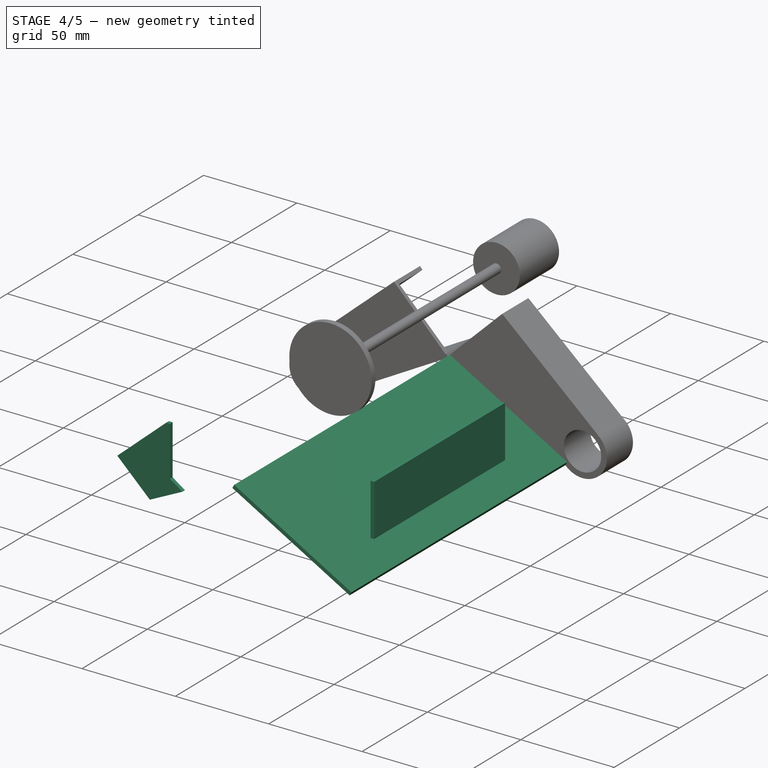
[diagram: stage 4 of 5 — iso view after this stage's code; geometry added in this stage tinted green]
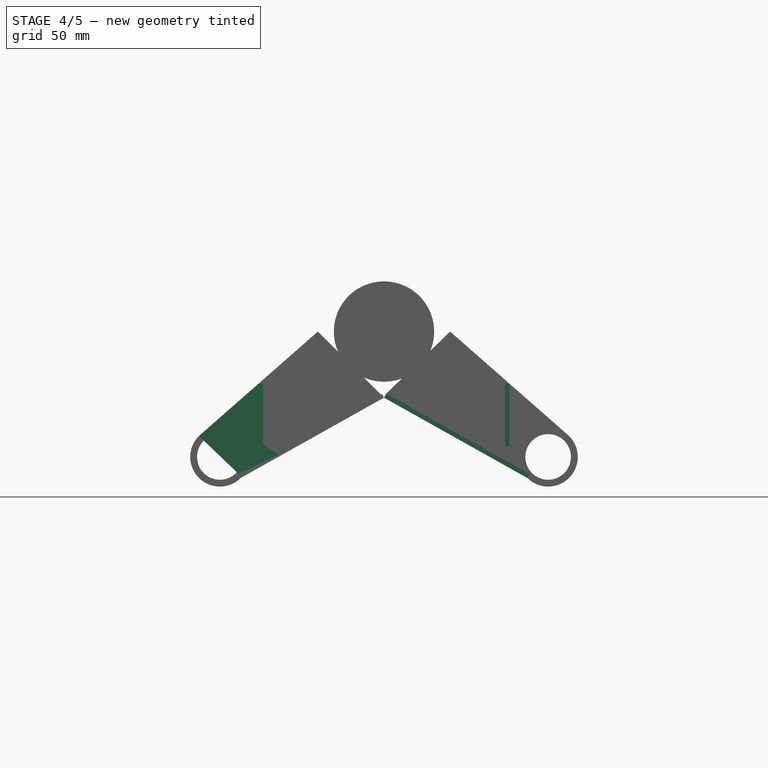
[diagram: stage 4 of 5 — front view after this stage's code; geometry added in this stage tinted green]
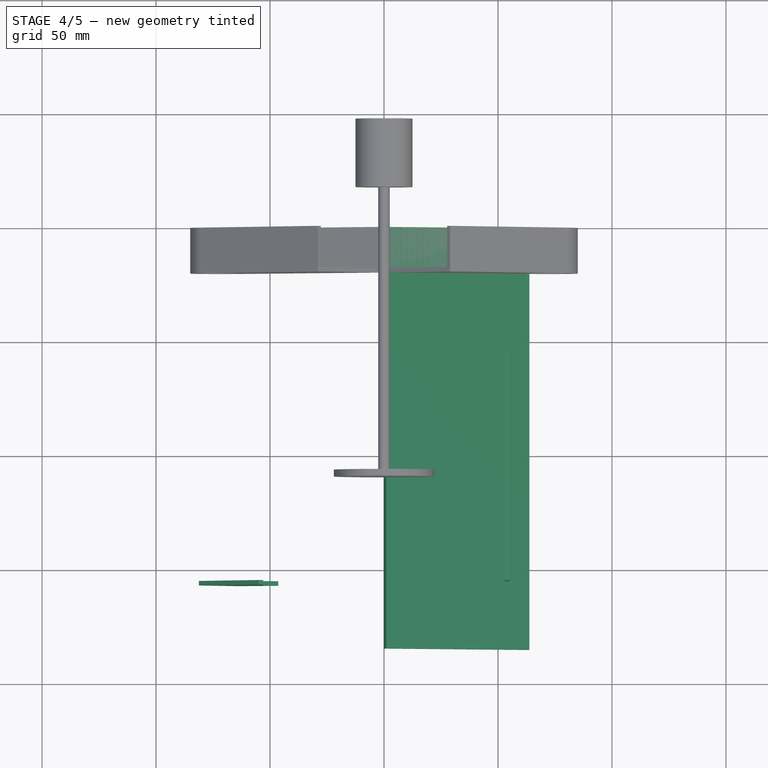
[diagram: stage 4 of 5 — top view after this stage's code; geometry added in this stage tinted green]
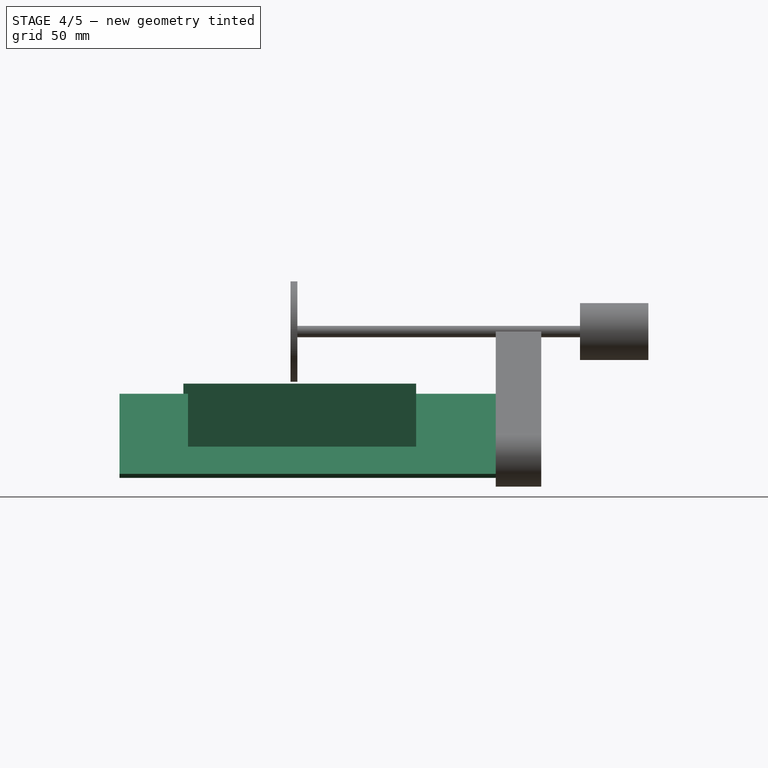
[diagram: stage 4 of 5 — right view after this stage's code; geometry added in this stage tinted green]
FEATURE [Part::Extrusion] Extrude015
  Base = -> Ruled_Surface
  Dir = (0,-1,0)
  DirMode = 0
  FaceMakerClass = Part::FaceMakerBullseye
  LengthFwd = 185
  LengthRev = 0
  Solid = false
  Symmetric = false
FEATURE [Part::Extrusion] Extrude016
  Base = -> Ruled_Surface001
  Dir = (0,-1,0)
  DirMode = 0
  FaceMakerClass = Part::FaceMakerBullseye
  LengthFwd = 185
  LengthRev = 0
  Solid = false
  Symmetric = false
FEATURE [Part::Extrusion] Extrude017
  Base = -> Ruled_Surface002
  Dir = (0,-1,0)
  DirMode = 0
  FaceMakerClass = Part::FaceMakerBullseye
  LengthFwd = 185
  LengthRev = 0
  Solid = true
  Symmetric = false
FEATURE [Part::MultiCommon] Common001
  Shapes = -> [Extrude019,Extrude015]
FEATURE [Part::Face] Face002
  FaceMakerClass = Part::FaceMakerBullseye
  Sources = -> [Sketch005]
FEATURE [Part::Extrusion] Extrude020
  Base = -> Sketch005
  Dir = (0,0,-1)
  DirMode = 0
  FaceMakerClass = Part::FaceMakerBullseye
  LengthFwd = 80
  LengthRev = 0
  Solid = true
  Symmetric = false
FEATURE [Part::MultiCommon] Common002
  Shapes = -> [Extrude017,Extrude020]
FEATURE [Part::RuledSurface] Ruled_Surface012
  Curve1 = -> Common [Edge6]
  Curve2 = -> Common [Edge14]
  Orientation = 0
FEATURE [Part::Extrusion] Extrude021
  Base = -> Ruled_Surface012
  Dir = (0,0,-1)
  DirMode = 0
  FaceMakerClass = Part::FaceMakerBullseye
  LengthFwd = 25
  LengthRev = 0
  Solid = false
  Symmetric = false
FEATURE [Part::RuledSurface] Ruled_Surface013
  Curve1 = -> Common001 [Edge6]
  Curve2 = -> Common001 [Edge12]
  Orientation = 0
FEATURE [Part::Extrusion] Extrude022
  Base = -> Ruled_Surface013
  Dir = (0,0,-1)
  DirMode = 0
  FaceMakerClass = Part::FaceMakerBullseye
  LengthFwd = 25
  LengthRev = 0
  Solid = false
  Symmetric = false
FEATURE [Part::RuledSurface] Ruled_Surface014
  Curve1 = -> Extrude022 [Edge3]
  Curve2 = -> Extrude022 [Edge10]
  Orientation = 0
FEATURE [Part::RuledSurface] Ruled_Surface015
  Curve1 = -> Extrude021 [Edge3]
  Curve2 = -> Extrude021 [Edge10]
  Orientation = 0
FEATURE [Part::Extrusion] Extrude023
  Base = -> Ruled_Surface014
  Dir = (-1,0,0)
  DirMode = 0
  FaceMakerClass = Part::FaceMakerBullseye
  LengthFwd = 2
  LengthRev = 0
  Solid = true
  Symmetric = false
FEATURE [Part::Extrusion] Extrude026
  Base = -> Ruled_Surface016
  Dir = (5.13,0,7.5)
  DirMode = 0
  FaceMakerClass = Part::FaceMakerBullseye
  LengthFwd = 2
  LengthRev = 0
  Solid = true
  Symmetric = false
FEATURE [Part::Extrusion] Extrude029
  Base = -> Ruled_Surface023
  Dir = (0,-1,0)
  DirMode = 0
  FaceMakerClass = Part::FaceMakerBullseye
  LengthFwd = 2
  LengthRev = 0
  Solid = true
  Symmetric = false
FEATURE [Part::Extrusion] Extrude030
  Base = -> Ruled_Surface026
  Dir = (0,-1,0)
  DirMode = 0
  FaceMakerClass = Part::FaceMakerBullseye
  LengthFwd = 2
  LengthRev = 0
  Solid = true
  Symmetric = false
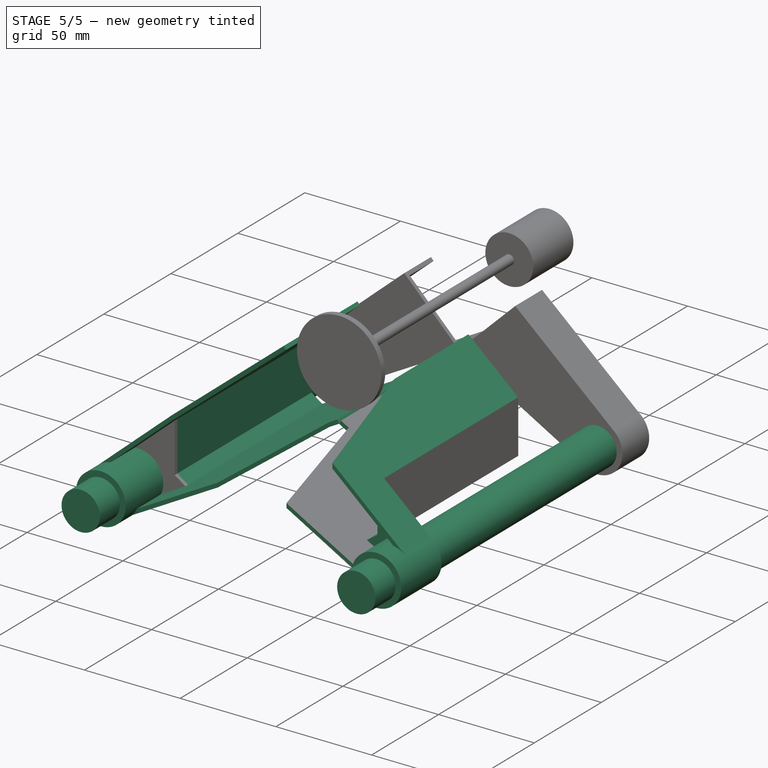
[diagram: stage 5 of 5 — iso view after this stage's code; geometry added in this stage tinted green]
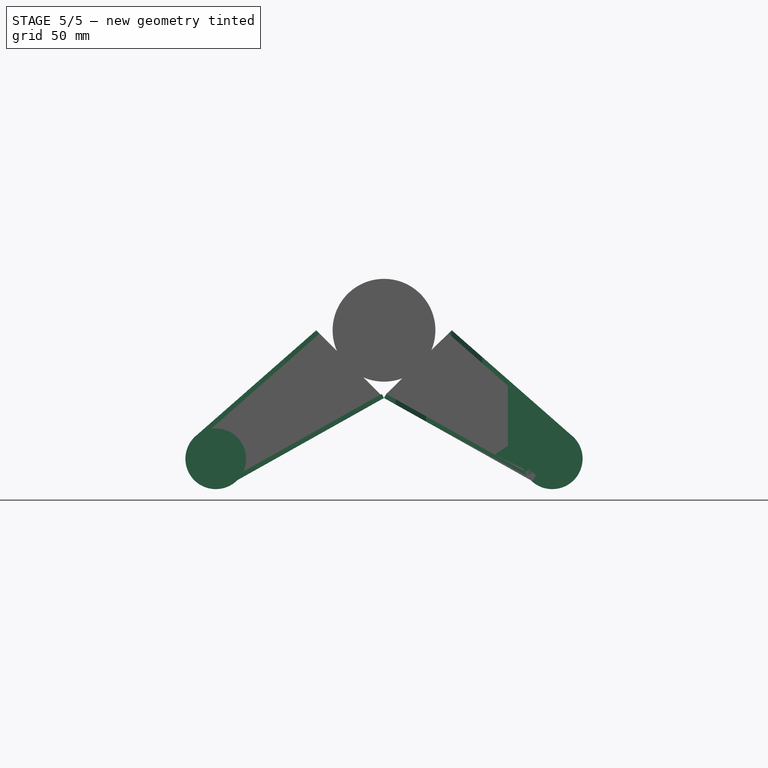
[diagram: stage 5 of 5 — front view after this stage's code; geometry added in this stage tinted green]
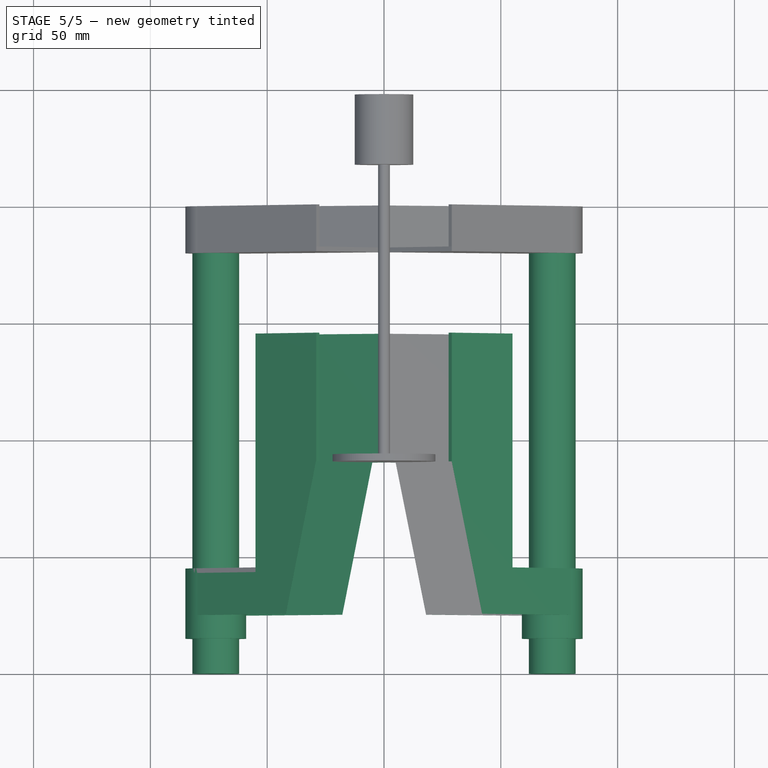
[diagram: stage 5 of 5 — top view after this stage's code; geometry added in this stage tinted green]
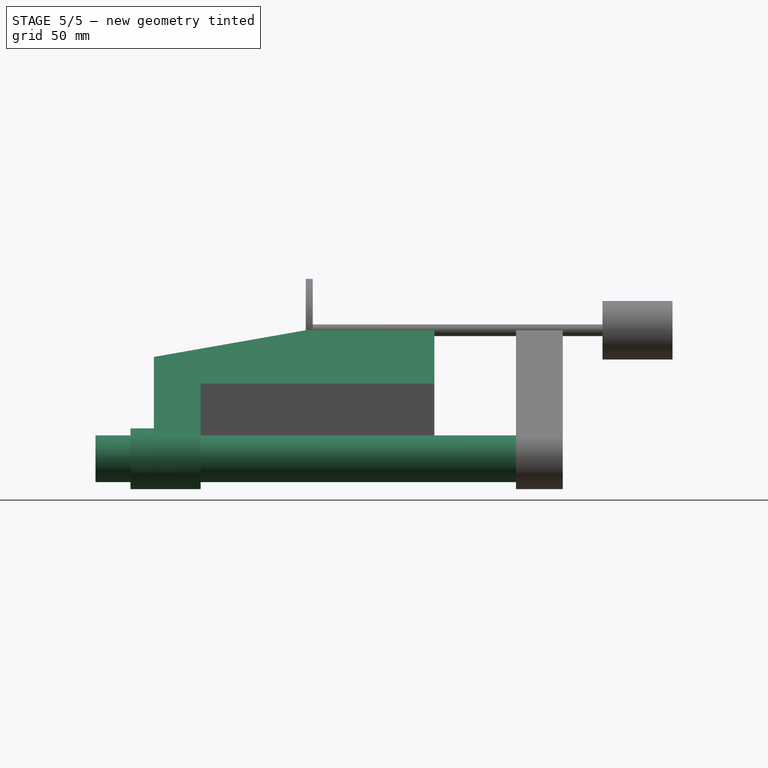
[diagram: stage 5 of 5 — right view after this stage's code; geometry added in this stage tinted green]
FEATURE [Part::Extrusion] Extrude006
  Base = -> Ruled_Surface005
  Dir = (0,-110,0)
  DirLink = -> Sketch001 [Edge1]
  DirMode = 1
  FaceMakerClass = Part::FaceMakerBullseye
  LengthFwd = 30
  LengthRev = 0
  Placement = pos=(0,-155,0) rot=(0,0,1;0rad)
  Solid = true
  Symmetric = false
FEATURE [Part::Extrusion] Extrude007
  Base = -> Ruled_Surface004
  Dir = (0,-110,0)
  DirLink = -> Sketch001 [Edge1]
  DirMode = 1
  FaceMakerClass = Part::FaceMakerBullseye
  LengthFwd = 30
  LengthRev = 0
  Placement = pos=(0,-155,0) rot=(0,0,1;0rad)
  Solid = true
  Symmetric = false
FEATURE [Part::MultiCommon] Common003
  Shapes = -> [Extrude016,Extrude020]
FEATURE [Part::RuledSurface] Ruled_Surface016
  Curve1 = -> Common002 [Edge12]
  Curve2 = -> Extrude024 [Edge9]
  Orientation = 0
FEATURE [Part::RuledSurface] Ruled_Surface019
  Curve1 = -> Extrude023 [Edge9]
  Curve2 = -> Common003 [Edge13]
  Orientation = 0
FEATURE [Sketcher::SketchObject] Sketch006
  ExternalGeometry = -> [Ruled_Surface019]
  FullyConstrained = true
  Placement = pos=(0,0,0) rot=(1,0,0;1.5708rad)
FEATURE [Part::Extrusion] Extrude025
  Base = -> Ruled_Surface019
  Dir = (-5.13,0,7.5)
  DirMode = 0
  FaceMakerClass = Part::FaceMakerBullseye
  LengthFwd = 2
  LengthRev = 0
  Solid = true
  Symmetric = false
FEATURE [Part::RuledSurface] Ruled_Surface020
  Curve1 = -> Extrude023 [Edge7]
  Curve2 = -> Common001 [Edge13]
  Orientation = 0
FEATURE [Part::RuledSurface] Ruled_Surface021
  Curve1 = -> Ruled_Surface020 [Edge2]
  Curve2 = -> Common003 [Edge3]
  Orientation = 0
FEATURE [Part::RuledSurface] Ruled_Surface022
  Curve1 = -> Ruled_Surface021 [Edge2]
  Curve2 = -> Extrude025 [Edge7]
  Orientation = 0
FEATURE [Part::RuledSurface] Ruled_Surface023
  Curve1 = -> Extrude024 [Edge7]
  Curve2 = -> Common [Edge5]
  Orientation = 0
FEATURE [Part::RuledSurface] Ruled_Surface025
  Curve1 = -> Common002 [Edge1]
  Curve2 = -> Ruled_Surface023 [Edge4]
  Orientation = 0
FEATURE [Part::RuledSurface] Ruled_Surface026
  Curve1 = -> Ruled_Surface025 [Edge2]
  Curve2 = -> Extrude026 [Edge7]
  Orientation = 0
FEATURE [Part::Extrusion] Extrude027
  Base = -> Ruled_Surface020
  Dir = (0,-1,0)
  DirMode = 0
  FaceMakerClass = Part::FaceMakerBullseye
  LengthFwd = 2
  LengthRev = 0
  Solid = true
  Symmetric = false
FEATURE [Part::Extrusion] Extrude028
  Base = -> Ruled_Surface022
  Dir = (0,-1,0)
  DirMode = 0
  FaceMakerClass = Part::FaceMakerBullseye
  LengthFwd = 2
  LengthRev = 0
  Solid = true
  Symmetric = false
FEATURE [Part::Extrusion] Extrude031
  Base = -> Face
  Dir = (0,-1,0)
  DirMode = 0
  FaceMakerClass = Part::FaceMakerBullseye
  LengthFwd = 200
  LengthRev = 0
  Solid = true
  Symmetric = false
FEATURE [Part::MultiFuse] Fusion002
  Shapes = -> [Extrude029,Extrude030,Extrude027,Extrude028]
FEATURE [Part::MultiFuse] Fusion003
  Shapes = -> [Extrude026,Extrude024,Fusion002,Common002,Common,Extrude006,Common003,Common001,Extrude025,Extrude023,Extrude007]
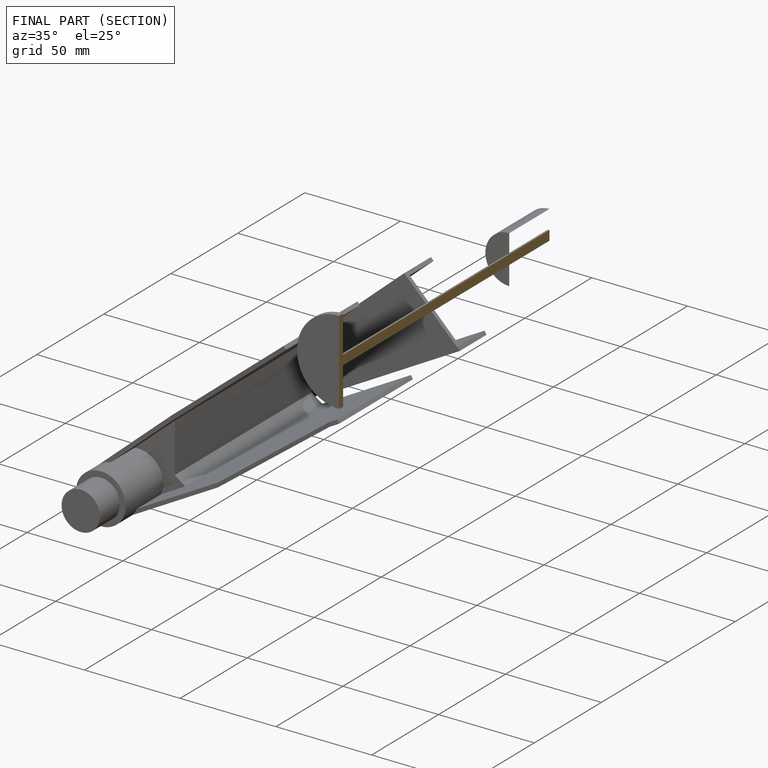
[diagram: finished part — half-section view (interior)]
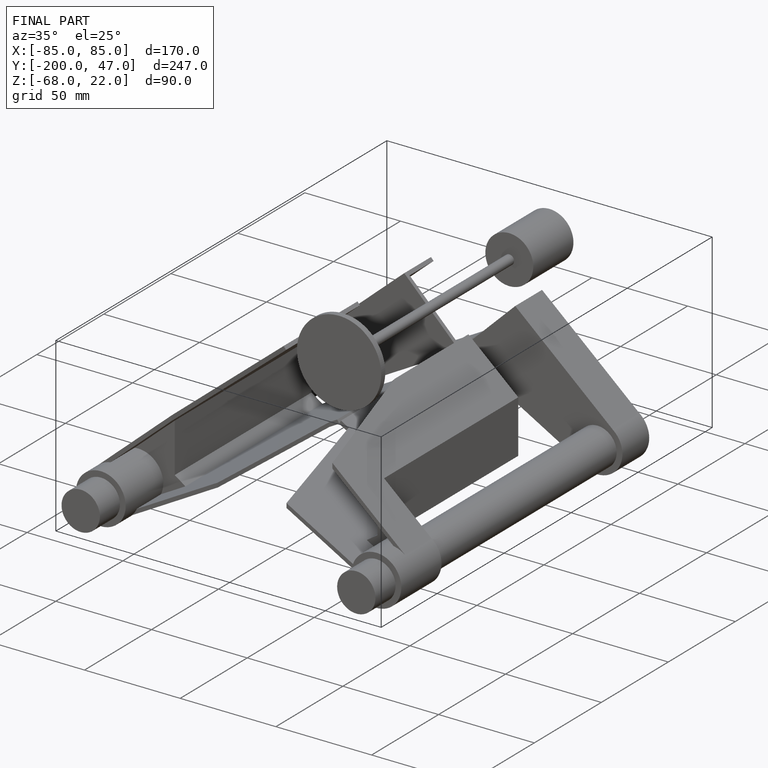
[diagram: finished part — iso view with bounding-box wireframe]
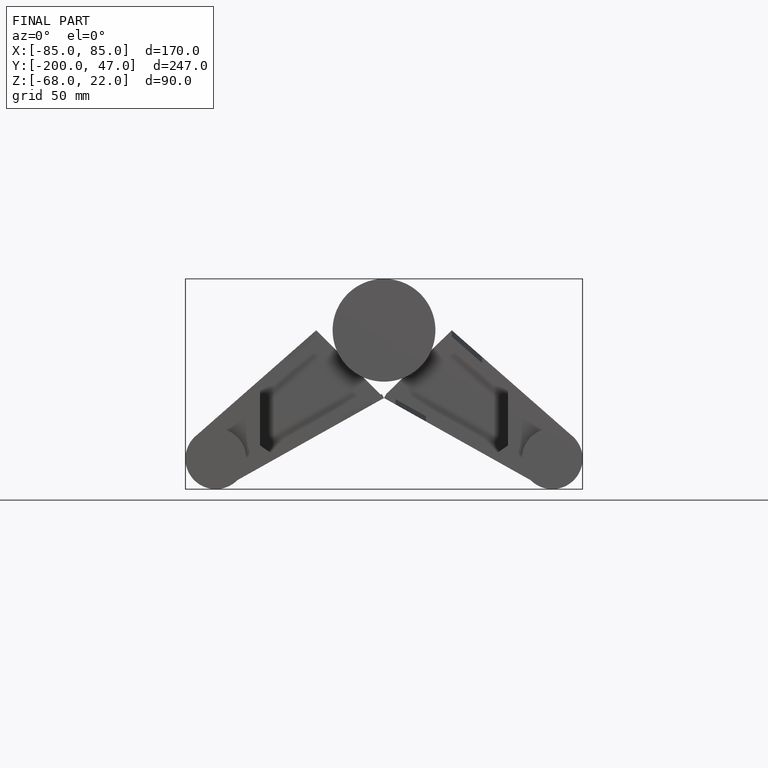
[diagram: finished part — front view with bounding-box wireframe]
